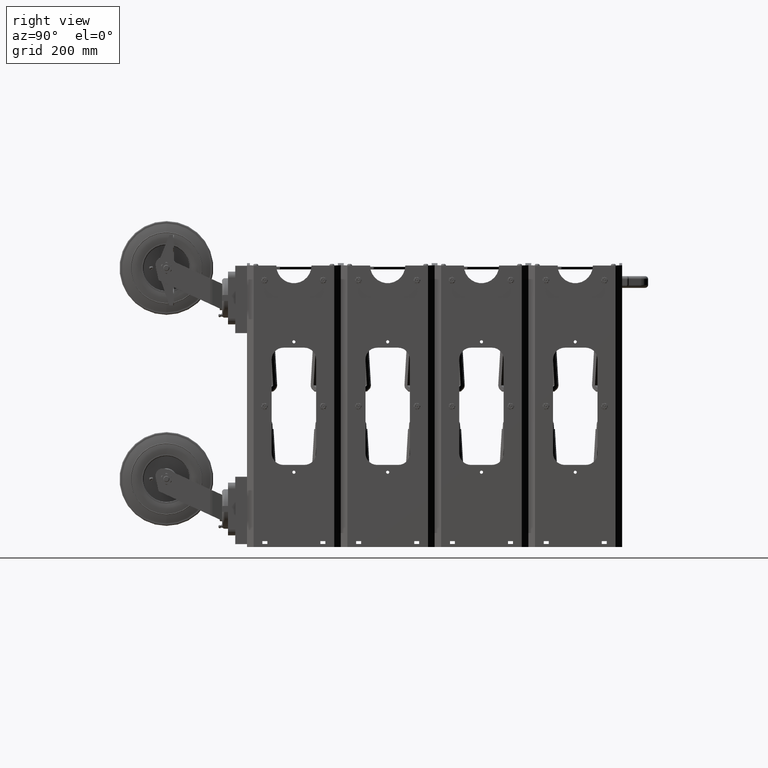
[diagram: clean part render]
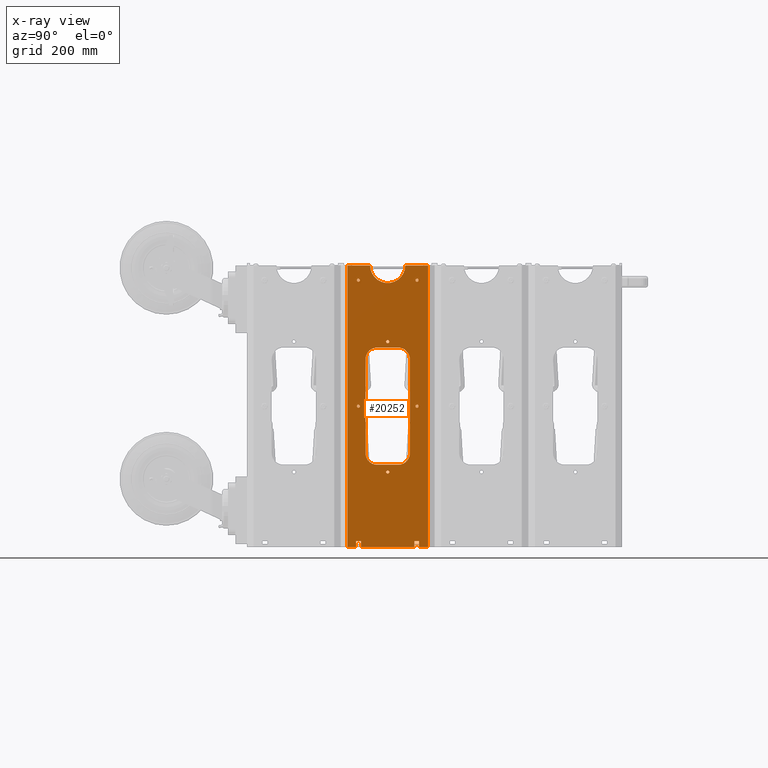
[diagram: x-ray — body ghosted, one internal face saturated and labeled with its STEP entity id]
A machine part, right view, then the same camera in x-ray: the body is ghosted and one INTERNAL B-rep face — a face not visible from any outside direction — is saturated and labeled: STEP entity #20252.
In plain terms, the highlighted planar face has unit normal (-1, 0, 0).
Its self-contained STEP definition (entity closure, byte-faithful):
#2249 = AXIS2_PLACEMENT_3D ( 'NONE', #14372, #14378, #14379 ) ;
#2266 = AXIS2_PLACEMENT_3D ( 'NONE', #14390, #14396, #14398 ) ;
#2268 = AXIS2_PLACEMENT_3D ( 'NONE', #14411, #14417, #14418 ) ;
#2270 = AXIS2_PLACEMENT_3D ( 'NONE', #14429, #14435, #14437 ) ;
#2272 = AXIS2_PLACEMENT_3D ( 'NONE', #14449, #14456, #14458 ) ;
#2274 = AXIS2_PLACEMENT_3D ( 'NONE', #14471, #14474, #14475 ) ;
#2288 = AXIS2_PLACEMENT_3D ( 'NONE', #14668, #14679, #14681 ) ;
#2289 = AXIS2_PLACEMENT_3D ( 'NONE', #14654, #14659, #14661 ) ;
#2292 = AXIS2_PLACEMENT_3D ( 'NONE', #14723, #14729, #14731 ) ;
#2294 = AXIS2_PLACEMENT_3D ( 'NONE', #14755, #14762, #14764 ) ;
#2295 = AXIS2_PLACEMENT_3D ( 'NONE', #14784, #14805, #14807 ) ;
#2296 = AXIS2_PLACEMENT_3D ( 'NONE', #14790, #14798, #14800 ) ;
#2299 = AXIS2_PLACEMENT_3D ( 'NONE', #14802, #14818, #14820 ) ;
#2300 = AXIS2_PLACEMENT_3D ( 'NONE', #14808, #14825, #14827 ) ;
#2302 = AXIS2_PLACEMENT_3D ( 'NONE', #14822, #14839, #14840 ) ;
#2304 = AXIS2_PLACEMENT_3D ( 'NONE', #14836, #14850, #14852 ) ;
#2307 = AXIS2_PLACEMENT_3D ( 'NONE', #15147, #15160, #15162 ) ;
#5935 = LINE ( 'NONE', #15193, #16429 ) ;
#8095 = CIRCLE ( 'NONE', #2249, 0.1329999999999999200 ) ;
#8101 = CIRCLE ( 'NONE', #2266, 0.1329999999999999200 ) ;
#8107 = CIRCLE ( 'NONE', #2268, 0.1329999999999999200 ) ;
#8113 = CIRCLE ( 'NONE', #2270, 0.1329999999999999200 ) ;
#8119 = CIRCLE ( 'NONE', #2272, 0.1329999999999997300 ) ;
#8125 = CIRCLE ( 'NONE', #2274, 0.1329999999999997000 ) ;
#8166 = VECTOR ( 'NONE', #14631, 39.37007874015748100 ) ;
#8168 = LINE ( 'NONE', #14629, #8166 ) ;
#8177 = LINE ( 'NONE', #14643, #8182 ) ;
#8182 = VECTOR ( 'NONE', #14652, 39.37007874015748100 ) ;
#8187 = LINE ( 'NONE', #14650, #8189 ) ;
#8188 = CIRCLE ( 'NONE', #2289, 1.000000000000000200 ) ;
#8189 = VECTOR ( 'NONE', #14671, 39.37007874015748100 ) ;
#8194 = CIRCLE ( 'NONE', #2288, 1.000000000000000200 ) ;
#8196 = VECTOR ( 'NONE', #14716, 39.37007874015748100 ) ;
#8198 = LINE ( 'NONE', #14714, #8196 ) ;
#8199 = LINE ( 'NONE', #14696, #8200 ) ;
#8200 = VECTOR ( 'NONE', #14698, 39.37007874015748100 ) ;
#8210 = VECTOR ( 'NONE', #14749, 39.37007874015748100 ) ;
#8211 = LINE ( 'NONE', #14747, #8210 ) ;
#8212 = CIRCLE ( 'NONE', #2292, 1.000000000000000900 ) ;
#8220 = CIRCLE ( 'NONE', #2294, 0.9999999999999996700 ) ;
#8227 = CIRCLE ( 'NONE', #2296, 0.1329999999999997000 ) ;
#8228 = CIRCLE ( 'NONE', #2295, 0.1329999999999997300 ) ;
#8230 = CIRCLE ( 'NONE', #2299, 0.1329999999999999200 ) ;
#8231 = CIRCLE ( 'NONE', #2300, 0.1329999999999999200 ) ;
#8235 = CIRCLE ( 'NONE', #2302, 0.1329999999999999200 ) ;
#8239 = CIRCLE ( 'NONE', #2304, 0.1329999999999999200 ) ;
#8319 = LINE ( 'NONE', #15087, #8336 ) ;
#8336 = VECTOR ( 'NONE', #15093, 39.37007874015748100 ) ;
#8337 = VECTOR ( 'NONE', #15166, 39.37007874015748100 ) ;
#8344 = LINE ( 'NONE', #15107, #8345 ) ;
#8345 = VECTOR ( 'NONE', #15109, 39.37007874015748100 ) ;
#8351 = LINE ( 'NONE', #15165, #8337 ) ;
#8352 = LINE ( 'NONE', #15123, #8353 ) ;
#8353 = VECTOR ( 'NONE', #15125, 39.37007874015748100 ) ;
#8360 = LINE ( 'NONE', #15139, #8361 ) ;
#8361 = VECTOR ( 'NONE', #15141, 39.37007874015748100 ) ;
#8369 = LINE ( 'NONE', #15142, #8377 ) ;
#8370 = CIRCLE ( 'NONE', #2307, 1.500000000000000900 ) ;
#8371 = LINE ( 'NONE', #15169, #8372 ) ;
#8372 = VECTOR ( 'NONE', #15171, 39.37007874015748100 ) ;
#8373 = LINE ( 'NONE', #15173, #8374 ) ;
#8374 = VECTOR ( 'NONE', #15175, 39.37007874015748100 ) ;
#8375 = LINE ( 'NONE', #15178, #8376 ) ;
#8376 = VECTOR ( 'NONE', #15180, 39.37007874015748100 ) ;
#8377 = VECTOR ( 'NONE', #15183, 39.37007874015748100 ) ;
#8379 = LINE ( 'NONE', #15185, #8380 ) ;
#8380 = VECTOR ( 'NONE', #15186, 39.37007874015748100 ) ;
#11352 = CARTESIAN_POINT ( 'NONE',  ( 2.201766197360070100E-015, 4.000000000000000900, 5.863000000000000400 ) ) ;
#11354 = CARTESIAN_POINT ( 'NONE',  ( 2.185478394931410600E-015, 4.000000000000000900, 5.597000000000000400 ) ) ;
#11359 = CARTESIAN_POINT ( 'NONE',  ( 1.628780242865980500E-017, 4.000000000000000900, -5.261999999999999600 ) ) ;
#11361 = CARTESIAN_POINT ( 'NONE',  ( 0.0000000000000000000, 4.000000000000000900, -5.527999999999999600 ) ) ;
#11366 = CARTESIAN_POINT ( 'NONE',  ( 2.500000000000004400, 3.999999999999992500, -10.51199999999999700 ) ) ;
#11368 = CARTESIAN_POINT ( 'NONE',  ( 2.500000000000004400, 3.999999999999992500, -10.77799999999999700 ) ) ;
#11373 = CARTESIAN_POINT ( 'NONE',  ( -2.499999999999995600, 4.000000000000000900, -10.51200000000000200 ) ) ;
#11375 = CARTESIAN_POINT ( 'NONE',  ( -2.499999999999995600, 4.000000000000000900, -10.77800000000000200 ) ) ;
#11380 = CARTESIAN_POINT ( 'NONE',  ( 2.500000000000002200, 3.999999999999992500, 0.2380000000000009600 ) ) ;
#11382 = CARTESIAN_POINT ( 'NONE',  ( 2.500000000000002200, 3.999999999999992500, -0.02799999999999853000 ) ) ;
#11387 = CARTESIAN_POINT ( 'NONE',  ( -2.499999999999997800, 4.000000000000000900, 0.2380000000000009100 ) ) ;
#11388 = CARTESIAN_POINT ( 'NONE',  ( -2.499999999999997800, 4.000000000000000900, -0.02799999999999853000 ) ) ;
#11435 = CARTESIAN_POINT ( 'NONE',  ( -2.687500000000000400, 4.000000000000000900, 11.60499999999999900 ) ) ;
#11436 = CARTESIAN_POINT ( 'NONE',  ( -2.263499999999998300, 4.000000000000000900, 11.60499999999999900 ) ) ;
#11442 = CARTESIAN_POINT ( 'NONE',  ( 2.263500000000002700, 3.999999999999992500, 11.60500000000000200 ) ) ;
#11443 = CARTESIAN_POINT ( 'NONE',  ( 2.687500000000000400, 3.999999999999992500, 11.60500000000000200 ) ) ;
#11452 = CARTESIAN_POINT ( 'NONE',  ( -1.895000000000001600, 4.000000000000000900, -3.894999999999996900 ) ) ;
#11454 = CARTESIAN_POINT ( 'NONE',  ( -1.894999999999994900, 4.000000000000000900, 4.105000000000000400 ) ) ;
#11457 = CARTESIAN_POINT ( 'NONE',  ( -0.8950000000000023500, 4.000000000000000900, -4.894999999999998700 ) ) ;
#11460 = CARTESIAN_POINT ( 'NONE',  ( 0.8949999999999935800, 3.999999999999996900, -4.894999999999996900 ) ) ;
#11464 = CARTESIAN_POINT ( 'NONE',  ( 1.894999999999999400, 3.999999999999992500, -3.894999999999991100 ) ) ;
#11467 = CARTESIAN_POINT ( 'NONE',  ( 1.895000000000003800, 3.999999999999992500, 4.105000000000000400 ) ) ;
#11471 = CARTESIAN_POINT ( 'NONE',  ( 0.8950000000000023500, 3.999999999999996900, 5.105000000000001300 ) ) ;
#11474 = CARTESIAN_POINT ( 'NONE',  ( -0.8949999999999980200, 4.000000000000000900, 5.104999999999999500 ) ) ;
#11527 = CARTESIAN_POINT ( 'NONE',  ( -2.687500000000000400, 4.000000000000000900, 12.10499999999999900 ) ) ;
#11532 = CARTESIAN_POINT ( 'NONE',  ( -2.263499999999998300, 4.000000000000000900, 12.10499999999999900 ) ) ;
#11538 = CARTESIAN_POINT ( 'NONE',  ( 2.263500000000002700, 3.999999999999992500, 12.10500000000000200 ) ) ;
#11543 = CARTESIAN_POINT ( 'NONE',  ( 2.687500000000000400, 3.999999999999992500, 12.10500000000000200 ) ) ;
#11553 = CARTESIAN_POINT ( 'NONE',  ( 3.437500000000009300, 3.999999999999992500, 12.10500000000000200 ) ) ;
#11555 = CARTESIAN_POINT ( 'NONE',  ( 3.437500000000004900, 3.999999999999992500, -11.89499999999999800 ) ) ;
#11556 = CARTESIAN_POINT ( 'NONE',  ( 1.499999999999998700, 3.999999999999996900, -11.89499999999999800 ) ) ;
#11558 = CARTESIAN_POINT ( 'NONE',  ( -1.500000000000003100, 4.000000000000000900, -11.89500000000000100 ) ) ;
#11560 = CARTESIAN_POINT ( 'NONE',  ( -3.437499999999994200, 4.000000000000000900, -11.89500000000000500 ) ) ;
#11562 = CARTESIAN_POINT ( 'NONE',  ( -3.437499999999992000, 4.000000000000000900, 12.10499999999999500 ) ) ;
#14372 = CARTESIAN_POINT ( 'NONE',  ( 2.185478394931410600E-015, 4.000000000000000900, 5.730000000000000400 ) ) ;
#14378 = DIRECTION ( 'NONE',  ( 1.972152263052529500E-031, -1.000000000000000000, 0.0000000000000000000 ) ) ;
#14379 = DIRECTION ( 'NONE',  ( 0.0000000000000000000, 0.0000000000000000000, -1.000000000000000000 ) ) ;
#14390 = CARTESIAN_POINT ( 'NONE',  ( 0.0000000000000000000, 4.000000000000000900, -5.394999999999999600 ) ) ;
#14396 = DIRECTION ( 'NONE',  ( 1.972152263052529500E-031, -1.000000000000000000, 0.0000000000000000000 ) ) ;
#14398 = DIRECTION ( 'NONE',  ( 0.0000000000000000000, 0.0000000000000000000, -1.000000000000000000 ) ) ;
#14411 = CARTESIAN_POINT ( 'NONE',  ( 2.500000000000004400, 3.999999999999992500, -10.64499999999999800 ) ) ;
#14417 = DIRECTION ( 'NONE',  ( 1.972152263052529500E-031, -1.000000000000000000, 0.0000000000000000000 ) ) ;
#14418 = DIRECTION ( 'NONE',  ( 0.0000000000000000000, 0.0000000000000000000, -1.000000000000000000 ) ) ;
#14429 = CARTESIAN_POINT ( 'NONE',  ( -2.499999999999995600, 4.000000000000000900, -10.64500000000000100 ) ) ;
#14435 = DIRECTION ( 'NONE',  ( 1.972152263052529500E-031, -1.000000000000000000, 0.0000000000000000000 ) ) ;
#14437 = DIRECTION ( 'NONE',  ( 0.0000000000000000000, 0.0000000000000000000, -1.000000000000000000 ) ) ;
#14449 = CARTESIAN_POINT ( 'NONE',  ( 2.500000000000002200, 3.999999999999992500, 0.1050000000000012000 ) ) ;
#14456 = DIRECTION ( 'NONE',  ( 1.972152263052529500E-031, -1.000000000000000000, 0.0000000000000000000 ) ) ;
#14458 = DIRECTION ( 'NONE',  ( 0.0000000000000000000, 0.0000000000000000000, -1.000000000000000000 ) ) ;
#14471 = CARTESIAN_POINT ( 'NONE',  ( -2.499999999999997800, 4.000000000000000900, 0.1050000000000011900 ) ) ;
#14474 = DIRECTION ( 'NONE',  ( 1.972152263052529500E-031, -1.000000000000000000, 0.0000000000000000000 ) ) ;
#14475 = DIRECTION ( 'NONE',  ( 0.0000000000000000000, 0.0000000000000000000, -1.000000000000000000 ) ) ;
#14629 = CARTESIAN_POINT ( 'NONE',  ( -1.894999999999994900, 4.000000000000000900, 4.105000000000000400 ) ) ;
#14631 = DIRECTION ( 'NONE',  ( -2.048885995248197900E-016, 0.0000000000000000000, -1.000000000000000000 ) ) ;
#14643 = CARTESIAN_POINT ( 'NONE',  ( -2.687500000000000400, 4.000000000000000900, 11.60499999999999900 ) ) ;
#14650 = CARTESIAN_POINT ( 'NONE',  ( 2.263500000000002700, 3.999999999999992500, 11.60500000000000200 ) ) ;
#14652 = DIRECTION ( 'NONE',  ( 1.000000000000000000, -1.972152263052529500E-031, 0.0000000000000000000 ) ) ;
#14654 = CARTESIAN_POINT ( 'NONE',  ( -0.8950000000000023500, 4.000000000000000900, -3.894999999999998200 ) ) ;
#14659 = DIRECTION ( 'NONE',  ( 1.972152263052529500E-031, -1.000000000000000000, 0.0000000000000000000 ) ) ;
#14661 = DIRECTION ( 'NONE',  ( 0.0000000000000000000, 0.0000000000000000000, 1.000000000000000000 ) ) ;
#14668 = CARTESIAN_POINT ( 'NONE',  ( 0.8950000000000023500, 3.999999999999996900, -3.894999999999996500 ) ) ;
#14671 = DIRECTION ( 'NONE',  ( 1.000000000000000000, -1.972152263052529500E-031, 0.0000000000000000000 ) ) ;
#14679 = DIRECTION ( 'NONE',  ( 1.972152263052529500E-031, -1.000000000000000000, 0.0000000000000000000 ) ) ;
#14681 = DIRECTION ( 'NONE',  ( 0.0000000000000000000, 0.0000000000000000000, -1.000000000000000000 ) ) ;
#14696 = CARTESIAN_POINT ( 'NONE',  ( -0.8950000000000023500, 4.000000000000000900, -4.894999999999998700 ) ) ;
#14698 = DIRECTION ( 'NONE',  ( 1.000000000000000000, -1.972152263052529500E-031, 0.0000000000000000000 ) ) ;
#14714 = CARTESIAN_POINT ( 'NONE',  ( 1.895000000000003800, 3.999999999999992500, 4.105000000000000400 ) ) ;
#14716 = DIRECTION ( 'NONE',  ( 0.0000000000000000000, 0.0000000000000000000, 1.000000000000000000 ) ) ;
#14723 = CARTESIAN_POINT ( 'NONE',  ( 0.8950000000000045700, 3.999999999999996900, 4.105000000000001300 ) ) ;
#14729 = DIRECTION ( 'NONE',  ( 1.972152263052529500E-031, -1.000000000000000000, 0.0000000000000000000 ) ) ;
#14731 = DIRECTION ( 'NONE',  ( 0.0000000000000000000, 0.0000000000000000000, -1.000000000000000000 ) ) ;
#14747 = CARTESIAN_POINT ( 'NONE',  ( -0.8949999999999980200, 4.000000000000000900, 5.104999999999999500 ) ) ;
#14749 = DIRECTION ( 'NONE',  ( -1.000000000000000000, 1.972152263052529100E-031, -6.104688253998350900E-016 ) ) ;
#14755 = CARTESIAN_POINT ( 'NONE',  ( -0.8949999999999958000, 4.000000000000000900, 4.104999999999999500 ) ) ;
#14762 = DIRECTION ( 'NONE',  ( 1.972152263052529500E-031, -1.000000000000000000, 0.0000000000000000000 ) ) ;
#14764 = DIRECTION ( 'NONE',  ( 0.0000000000000000000, 0.0000000000000000000, 1.000000000000000000 ) ) ;
#14784 = CARTESIAN_POINT ( 'NONE',  ( 2.500000000000002200, 3.999999999999992500, 0.1050000000000012000 ) ) ;
#14790 = CARTESIAN_POINT ( 'NONE',  ( -2.499999999999997800, 4.000000000000000900, 0.1050000000000011900 ) ) ;
#14798 = DIRECTION ( 'NONE',  ( 1.972152263052529500E-031, -1.000000000000000000, 0.0000000000000000000 ) ) ;
#14800 = DIRECTION ( 'NONE',  ( 0.0000000000000000000, 0.0000000000000000000, -1.000000000000000000 ) ) ;
#14802 = CARTESIAN_POINT ( 'NONE',  ( -2.499999999999995600, 4.000000000000000900, -10.64500000000000100 ) ) ;
#14805 = DIRECTION ( 'NONE',  ( 1.972152263052529500E-031, -1.000000000000000000, 0.0000000000000000000 ) ) ;
#14807 = DIRECTION ( 'NONE',  ( 0.0000000000000000000, 0.0000000000000000000, -1.000000000000000000 ) ) ;
#14808 = CARTESIAN_POINT ( 'NONE',  ( 2.500000000000004400, 3.999999999999992500, -10.64499999999999800 ) ) ;
#14818 = DIRECTION ( 'NONE',  ( 1.972152263052529500E-031, -1.000000000000000000, 0.0000000000000000000 ) ) ;
#14820 = DIRECTION ( 'NONE',  ( 0.0000000000000000000, 0.0000000000000000000, -1.000000000000000000 ) ) ;
#14822 = CARTESIAN_POINT ( 'NONE',  ( 0.0000000000000000000, 4.000000000000000900, -5.394999999999999600 ) ) ;
#14825 = DIRECTION ( 'NONE',  ( 1.972152263052529500E-031, -1.000000000000000000, 0.0000000000000000000 ) ) ;
#14827 = DIRECTION ( 'NONE',  ( 0.0000000000000000000, 0.0000000000000000000, -1.000000000000000000 ) ) ;
#14836 = CARTESIAN_POINT ( 'NONE',  ( 2.185478394931410600E-015, 4.000000000000000900, 5.730000000000000400 ) ) ;
#14839 = DIRECTION ( 'NONE',  ( 1.972152263052529500E-031, -1.000000000000000000, 0.0000000000000000000 ) ) ;
#14840 = DIRECTION ( 'NONE',  ( 0.0000000000000000000, 0.0000000000000000000, -1.000000000000000000 ) ) ;
#14850 = DIRECTION ( 'NONE',  ( 1.972152263052529500E-031, -1.000000000000000000, 0.0000000000000000000 ) ) ;
#14852 = DIRECTION ( 'NONE',  ( 0.0000000000000000000, 0.0000000000000000000, -1.000000000000000000 ) ) ;
#15087 = CARTESIAN_POINT ( 'NONE',  ( -2.687500000000000400, 4.000000000000000900, 12.10499999999999900 ) ) ;
#15093 = DIRECTION ( 'NONE',  ( 0.0000000000000000000, 0.0000000000000000000, -1.000000000000000000 ) ) ;
#15107 = CARTESIAN_POINT ( 'NONE',  ( -2.263499999999998300, 4.000000000000000900, 12.10499999999999900 ) ) ;
#15109 = DIRECTION ( 'NONE',  ( 5.463695987328531400E-016, -8.758115402030106700E-047, 1.000000000000000000 ) ) ;
#15123 = CARTESIAN_POINT ( 'NONE',  ( 2.263500000000002700, 3.999999999999992500, 12.10500000000000200 ) ) ;
#15125 = DIRECTION ( 'NONE',  ( 5.463695987328531400E-016, -1.642146637880645000E-046, -1.000000000000000000 ) ) ;
#15139 = CARTESIAN_POINT ( 'NONE',  ( 2.687500000000000400, 3.999999999999992500, 12.10500000000000200 ) ) ;
#15141 = DIRECTION ( 'NONE',  ( 0.0000000000000000000, 0.0000000000000000000, 1.000000000000000000 ) ) ;
#15142 = CARTESIAN_POINT ( 'NONE',  ( -3.437499999999992000, 4.000000000000000900, 12.10499999999999500 ) ) ;
#15147 = CARTESIAN_POINT ( 'NONE',  ( -2.185478394931410600E-015, 4.000000000000000900, -11.89500000000000000 ) ) ;
#15160 = DIRECTION ( 'NONE',  ( 1.972152263052529500E-031, -1.000000000000000000, 0.0000000000000000000 ) ) ;
#15162 = DIRECTION ( 'NONE',  ( 0.0000000000000000000, 0.0000000000000000000, -1.000000000000000000 ) ) ;
#15165 = CARTESIAN_POINT ( 'NONE',  ( -3.999999999999998700, 4.000000000000000900, -11.89500000000000500 ) ) ;
#15166 = DIRECTION ( 'NONE',  ( 1.000000000000000000, -1.972152263052529500E-031, 0.0000000000000000000 ) ) ;
#15169 = CARTESIAN_POINT ( 'NONE',  ( 3.437500000000009300, 3.999999999999992500, 12.10500000000000200 ) ) ;
#15171 = DIRECTION ( 'NONE',  ( 0.0000000000000000000, 0.0000000000000000000, -1.000000000000000000 ) ) ;
#15173 = CARTESIAN_POINT ( 'NONE',  ( -4.000000000000000900, 4.000000000000000900, 12.10499999999999500 ) ) ;
#15175 = DIRECTION ( 'NONE',  ( -1.000000000000000000, 1.972152263052529500E-031, 0.0000000000000000000 ) ) ;
#15178 = CARTESIAN_POINT ( 'NONE',  ( -3.999999999999998700, 4.000000000000000900, -11.89500000000000500 ) ) ;
#15180 = DIRECTION ( 'NONE',  ( 1.000000000000000000, -1.972152263052529500E-031, 0.0000000000000000000 ) ) ;
#15183 = DIRECTION ( 'NONE',  ( 0.0000000000000000000, 0.0000000000000000000, 1.000000000000000000 ) ) ;
#15185 = CARTESIAN_POINT ( 'NONE',  ( -4.000000000000000900, 4.000000000000000900, 12.10499999999999500 ) ) ;
#15186 = DIRECTION ( 'NONE',  ( -1.000000000000000000, 1.972152263052529500E-031, 0.0000000000000000000 ) ) ;
#15193 = CARTESIAN_POINT ( 'NONE',  ( -4.000000000000000900, 4.000000000000000900, 12.10499999999999500 ) ) ;
#15195 = DIRECTION ( 'NONE',  ( -1.000000000000000000, 1.972152263052529500E-031, 0.0000000000000000000 ) ) ;
#16429 = VECTOR ( 'NONE', #15195, 39.37007874015748100 ) ;
#20252 = ADVANCED_FACE ( 'NONE', ( #32564, #32568, #32570, #32572, #32554, #32566, #32569, #32571 ), #29433, .F. ) ;
#24064 = EDGE_LOOP ( 'NONE', ( #43972, #43973 ) ) ;
#24070 = EDGE_LOOP ( 'NONE', ( #43974, #43975 ) ) ;
#24071 = EDGE_LOOP ( 'NONE', ( #43976, #43977 ) ) ;
#24072 = EDGE_LOOP ( 'NONE', ( #43980, #43981 ) ) ;
#24073 = EDGE_LOOP ( 'NONE', ( #43978, #43979 ) ) ;
#24074 = EDGE_LOOP ( 'NONE', ( #43982, #43983 ) ) ;
#24075 = EDGE_LOOP ( 'NONE', ( #43984, #43985, #43986, #43987, #43988, #43989, #43990, #43991 ) ) ;
#24076 = EDGE_LOOP ( 'NONE', ( #43992, #43993, #43994, #43995, #43996, #43997, #43998, #43999, #44000, #44001, #44002, #44003, #44004, #44005 ) ) ;
#27285 = AXIS2_PLACEMENT_3D ( 'NONE', #29423, #29436, #29437 ) ;
#29423 = CARTESIAN_POINT ( 'NONE',  ( -4.000000000000000900, 4.000000000000000900, 12.10499999999999500 ) ) ;
#29433 = PLANE ( 'NONE',  #27285 ) ;
#29436 = DIRECTION ( 'NONE',  ( 1.972152263052529500E-031, -1.000000000000000000, 0.0000000000000000000 ) ) ;
#29437 = DIRECTION ( 'NONE',  ( 0.0000000000000000000, 0.0000000000000000000, -1.000000000000000000 ) ) ;
#32554 = FACE_BOUND ( 'NONE', #24072, .T. ) ;
#32564 = FACE_BOUND ( 'NONE', #24064, .T. ) ;
#32566 = FACE_BOUND ( 'NONE', #24074, .T. ) ;
#32568 = FACE_BOUND ( 'NONE', #24070, .T. ) ;
#32569 = FACE_BOUND ( 'NONE', #24075, .T. ) ;
#32570 = FACE_BOUND ( 'NONE', #24071, .T. ) ;
#32571 = FACE_OUTER_BOUND ( 'NONE', #24076, .T. ) ;
#32572 = FACE_BOUND ( 'NONE', #24073, .T. ) ;
#38198 = VERTEX_POINT ( 'NONE', #11352 ) ;
#38199 = VERTEX_POINT ( 'NONE', #11354 ) ;
#38202 = VERTEX_POINT ( 'NONE', #11359 ) ;
#38203 = VERTEX_POINT ( 'NONE', #11361 ) ;
#38206 = VERTEX_POINT ( 'NONE', #11366 ) ;
#38207 = VERTEX_POINT ( 'NONE', #11368 ) ;
#38210 = VERTEX_POINT ( 'NONE', #11373 ) ;
#38211 = VERTEX_POINT ( 'NONE', #11375 ) ;
#38214 = VERTEX_POINT ( 'NONE', #11380 ) ;
#38215 = VERTEX_POINT ( 'NONE', #11382 ) ;
#38218 = VERTEX_POINT ( 'NONE', #11387 ) ;
#38219 = VERTEX_POINT ( 'NONE', #11388 ) ;
#38246 = VERTEX_POINT ( 'NONE', #11435 ) ;
#38247 = VERTEX_POINT ( 'NONE', #11436 ) ;
#38250 = VERTEX_POINT ( 'NONE', #11442 ) ;
#38251 = VERTEX_POINT ( 'NONE', #11443 ) ;
#38256 = VERTEX_POINT ( 'NONE', #11452 ) ;
#38257 = VERTEX_POINT ( 'NONE', #11454 ) ;
#38259 = VERTEX_POINT ( 'NONE', #11457 ) ;
#38261 = VERTEX_POINT ( 'NONE', #11460 ) ;
#38263 = VERTEX_POINT ( 'NONE', #11464 ) ;
#38265 = VERTEX_POINT ( 'NONE', #11467 ) ;
#38267 = VERTEX_POINT ( 'NONE', #11471 ) ;
#38269 = VERTEX_POINT ( 'NONE', #11474 ) ;
#38300 = VERTEX_POINT ( 'NONE', #11527 ) ;
#38303 = VERTEX_POINT ( 'NONE', #11532 ) ;
#38306 = VERTEX_POINT ( 'NONE', #11538 ) ;
#38309 = VERTEX_POINT ( 'NONE', #11543 ) ;
#38315 = VERTEX_POINT ( 'NONE', #11553 ) ;
#38316 = VERTEX_POINT ( 'NONE', #11555 ) ;
#38317 = VERTEX_POINT ( 'NONE', #11556 ) ;
#38318 = VERTEX_POINT ( 'NONE', #11558 ) ;
#38319 = VERTEX_POINT ( 'NONE', #11560 ) ;
#38320 = VERTEX_POINT ( 'NONE', #11562 ) ;
#43972 = ORIENTED_EDGE ( 'NONE', *, *, #44300, .T. ) ;
#43973 = ORIENTED_EDGE ( 'NONE', *, *, #44208, .T. ) ;
#43974 = ORIENTED_EDGE ( 'NONE', *, *, #44298, .T. ) ;
#43975 = ORIENTED_EDGE ( 'NONE', *, *, #44212, .T. ) ;
#43976 = ORIENTED_EDGE ( 'NONE', *, *, #44296, .T. ) ;
#43977 = ORIENTED_EDGE ( 'NONE', *, *, #44216, .T. ) ;
#43978 = ORIENTED_EDGE ( 'NONE', *, *, #44295, .T. ) ;
#43979 = ORIENTED_EDGE ( 'NONE', *, *, #44220, .T. ) ;
#43980 = ORIENTED_EDGE ( 'NONE', *, *, #44293, .T. ) ;
#43981 = ORIENTED_EDGE ( 'NONE', *, *, #44224, .T. ) ;
#43982 = ORIENTED_EDGE ( 'NONE', *, *, #44292, .T. ) ;
#43983 = ORIENTED_EDGE ( 'NONE', *, *, #44228, .T. ) ;
#43984 = ORIENTED_EDGE ( 'NONE', *, *, #44283, .T. ) ;
#43985 = ORIENTED_EDGE ( 'NONE', *, *, #44286, .T. ) ;
#43986 = ORIENTED_EDGE ( 'NONE', *, *, #44260, .T. ) ;
#43987 = ORIENTED_EDGE ( 'NONE', *, *, #44266, .T. ) ;
#43988 = ORIENTED_EDGE ( 'NONE', *, *, #44274, .T. ) ;
#43989 = ORIENTED_EDGE ( 'NONE', *, *, #44270, .T. ) ;
#43990 = ORIENTED_EDGE ( 'NONE', *, *, #44277, .T. ) ;
#43991 = ORIENTED_EDGE ( 'NONE', *, *, #44280, .T. ) ;
#43992 = ORIENTED_EDGE ( 'NONE', *, *, #44359, .T. ) ;
#43993 = ORIENTED_EDGE ( 'NONE', *, *, #44268, .T. ) ;
#43994 = ORIENTED_EDGE ( 'NONE', *, *, #44363, .T. ) ;
#43995 = ORIENTED_EDGE ( 'NONE', *, *, #44371, .F. ) ;
#43996 = ORIENTED_EDGE ( 'NONE', *, *, #44370, .T. ) ;
#43997 = ORIENTED_EDGE ( 'NONE', *, *, #44369, .F. ) ;
#43998 = ORIENTED_EDGE ( 'NONE', *, *, #44368, .T. ) ;
#43999 = ORIENTED_EDGE ( 'NONE', *, *, #44372, .F. ) ;
#44000 = ORIENTED_EDGE ( 'NONE', *, *, #44373, .T. ) ;
#44001 = ORIENTED_EDGE ( 'NONE', *, *, #44374, .F. ) ;
#44002 = ORIENTED_EDGE ( 'NONE', *, *, #44351, .T. ) ;
#44003 = ORIENTED_EDGE ( 'NONE', *, *, #44264, .T. ) ;
#44004 = ORIENTED_EDGE ( 'NONE', *, *, #44355, .T. ) ;
#44005 = ORIENTED_EDGE ( 'NONE', *, *, #44376, .F. ) ;
#44208 = EDGE_CURVE ( 'NONE', #38198, #38199, #8095, .T. ) ;
#44212 = EDGE_CURVE ( 'NONE', #38202, #38203, #8101, .T. ) ;
#44216 = EDGE_CURVE ( 'NONE', #38206, #38207, #8107, .T. ) ;
#44220 = EDGE_CURVE ( 'NONE', #38210, #38211, #8113, .T. ) ;
#44224 = EDGE_CURVE ( 'NONE', #38214, #38215, #8119, .T. ) ;
#44228 = EDGE_CURVE ( 'NONE', #38218, #38219, #8125, .T. ) ;
#44260 = EDGE_CURVE ( 'NONE', #38257, #38256, #8168, .T. ) ;
#44264 = EDGE_CURVE ( 'NONE', #38246, #38247, #8177, .T. ) ;
#44266 = EDGE_CURVE ( 'NONE', #38256, #38259, #8188, .T. ) ;
#44268 = EDGE_CURVE ( 'NONE', #38250, #38251, #8187, .T. ) ;
#44270 = EDGE_CURVE ( 'NONE', #38261, #38263, #8194, .T. ) ;
#44274 = EDGE_CURVE ( 'NONE', #38259, #38261, #8199, .T. ) ;
#44277 = EDGE_CURVE ( 'NONE', #38263, #38265, #8198, .T. ) ;
#44280 = EDGE_CURVE ( 'NONE', #38265, #38267, #8212, .T. ) ;
#44283 = EDGE_CURVE ( 'NONE', #38267, #38269, #8211, .T. ) ;
#44286 = EDGE_CURVE ( 'NONE', #38269, #38257, #8220, .T. ) ;
#44292 = EDGE_CURVE ( 'NONE', #38219, #38218, #8227, .T. ) ;
#44293 = EDGE_CURVE ( 'NONE', #38215, #38214, #8228, .T. ) ;
#44295 = EDGE_CURVE ( 'NONE', #38211, #38210, #8230, .T. ) ;
#44296 = EDGE_CURVE ( 'NONE', #38207, #38206, #8231, .T. ) ;
#44298 = EDGE_CURVE ( 'NONE', #38203, #38202, #8235, .T. ) ;
#44300 = EDGE_CURVE ( 'NONE', #38199, #38198, #8239, .T. ) ;
#44351 = EDGE_CURVE ( 'NONE', #38300, #38246, #8319, .T. ) ;
#44355 = EDGE_CURVE ( 'NONE', #38247, #38303, #8344, .T. ) ;
#44359 = EDGE_CURVE ( 'NONE', #38306, #38250, #8352, .T. ) ;
#44363 = EDGE_CURVE ( 'NONE', #38251, #38309, #8360, .T. ) ;
#44368 = EDGE_CURVE ( 'NONE', #38317, #38318, #8370, .T. ) ;
#44369 = EDGE_CURVE ( 'NONE', #38317, #38316, #8351, .T. ) ;
#44370 = EDGE_CURVE ( 'NONE', #38315, #38316, #8371, .T. ) ;
#44371 = EDGE_CURVE ( 'NONE', #38315, #38309, #8373, .T. ) ;
#44372 = EDGE_CURVE ( 'NONE', #38319, #38318, #8375, .T. ) ;
#44373 = EDGE_CURVE ( 'NONE', #38319, #38320, #8369, .T. ) ;
#44374 = EDGE_CURVE ( 'NONE', #38300, #38320, #8379, .T. ) ;
#44376 = EDGE_CURVE ( 'NONE', #38306, #38303, #5935, .T. ) ;